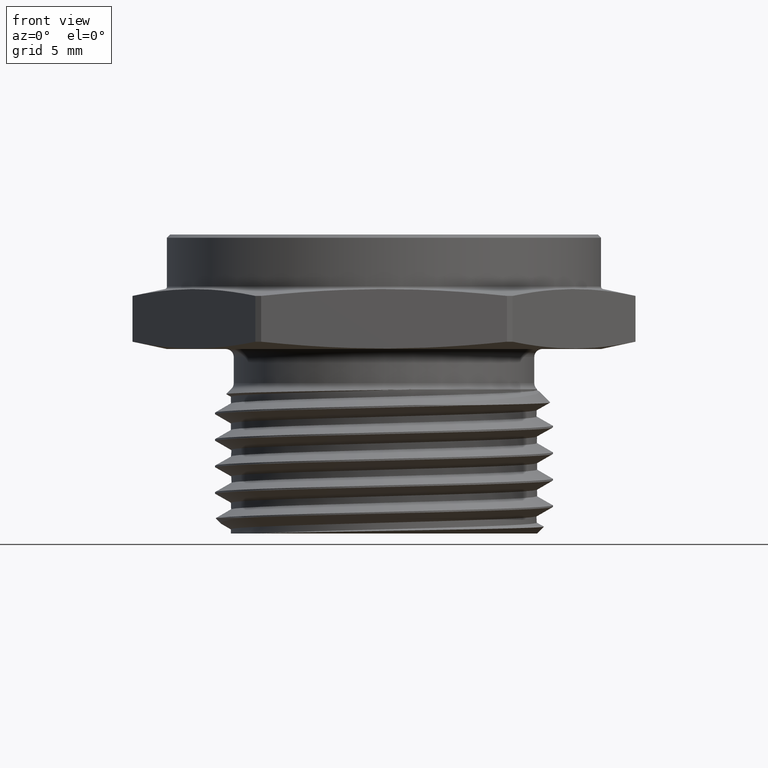
[diagram: clean part render]
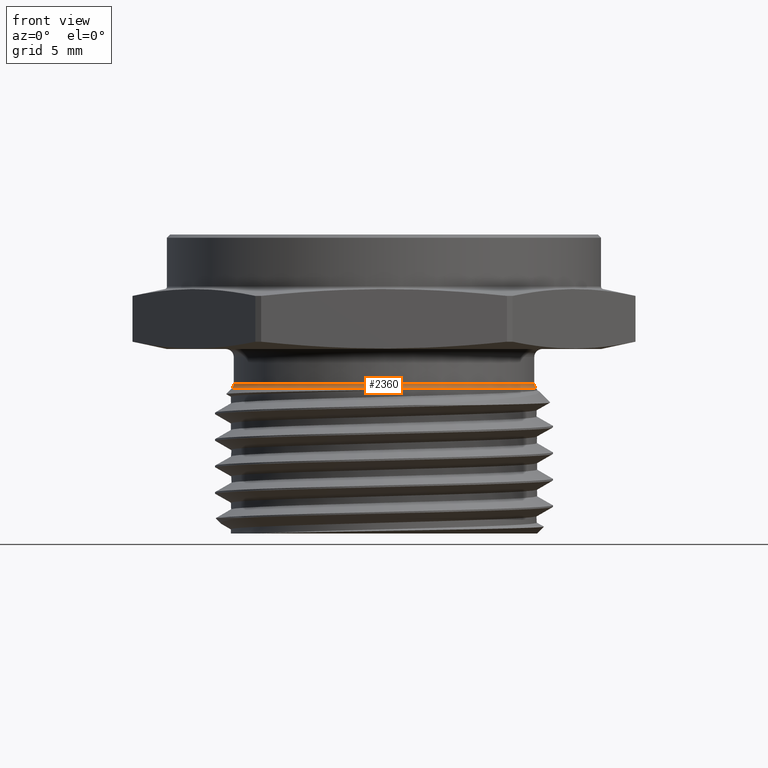
[diagram: same view with one face highlighted and labeled with its STEP entity id]
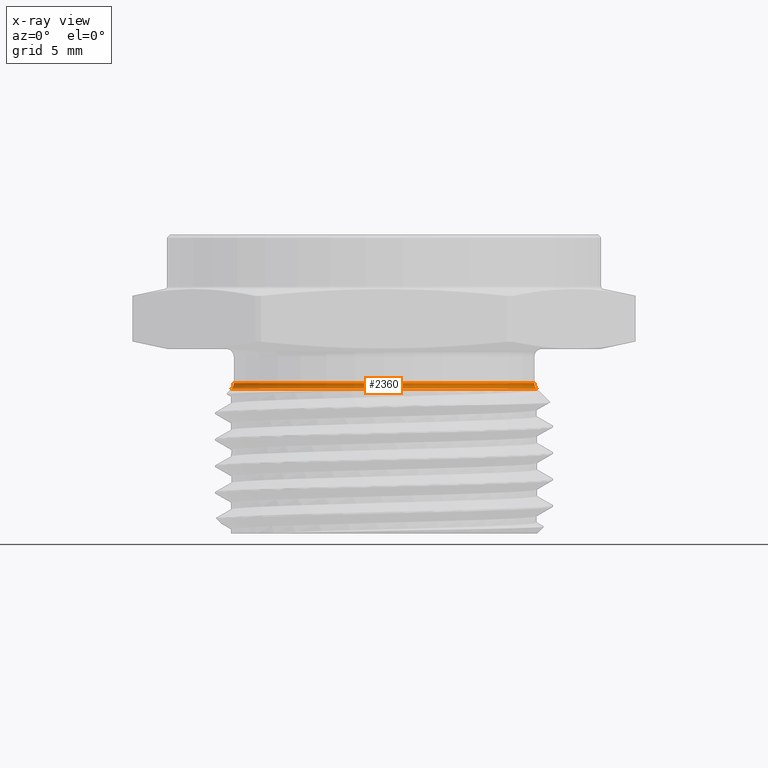
[diagram: x-ray of the same camera — body ghosted, the highlighted face saturated]
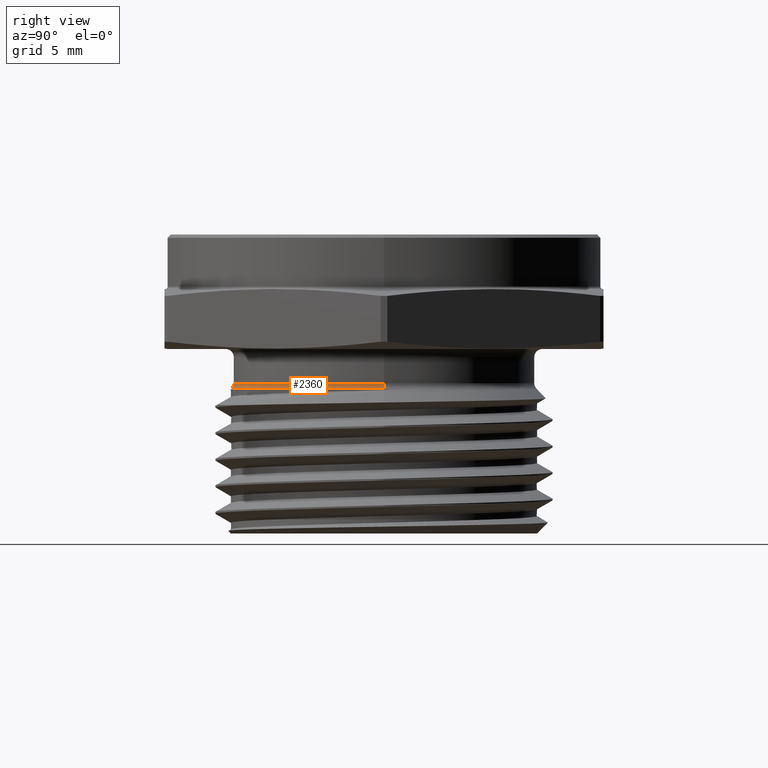
[diagram: same view with one face highlighted and labeled with its STEP entity id]
A machine part, front view. The second image highlights one B-rep face of the part: STEP entity #2360.
The next image is the same camera in x-ray: the body ghosted, the highlighted face saturated — about 0% of this face is hidden behind the body in this view.
A second angle (right view) of the same face is appended — the face is thin or edge-on in the first view.
In plain terms, the highlighted toroidal blend (fillet) surface has major radius 12.6365 mm and minor (blend) radius 0.635 mm.
Its self-contained STEP definition (entity closure, byte-faithful):
#447 = CIRCLE ( 'NONE', #2270, 0.02499999999999999100 ) ;
#458 = CIRCLE ( 'NONE', #2272, 0.02500000000000000500 ) ;
#459 = CIRCLE ( 'NONE', #2271, 0.4798223304703362900 ) ;
#461 = CIRCLE ( 'NONE', #2273, 0.4724999999999999200 ) ;
#518 = FACE_OUTER_BOUND ( 'NONE', #1702, .T. ) ;
#519 = TOROIDAL_SURFACE ( 'NONE', #2300, 0.4974999999999999400, 0.02499999999999999800 ) ;
#1105 = DIRECTION ( 'NONE',  ( -0.0000000000000000000, -0.0000000000000000000, 1.000000000000000000 ) ) ;
#1106 = CARTESIAN_POINT ( 'NONE',  ( 0.0000000000000000000, 0.0000000000000000000, -0.1073223304703362200 ) ) ;
#1108 = DIRECTION ( 'NONE',  ( 1.000000000000000000, 0.0000000000000000000, 0.0000000000000000000 ) ) ;
#1234 = VERTEX_POINT ( 'NONE', #1359 ) ;
#1236 = VERTEX_POINT ( 'NONE', #1366 ) ;
#1252 = VERTEX_POINT ( 'NONE', #1380 ) ;
#1253 = VERTEX_POINT ( 'NONE', #1381 ) ;
#1359 = CARTESIAN_POINT ( 'NONE',  ( 0.4798223304703362900, 6.191032466084761400E-017, -0.1249999999999999300 ) ) ;
#1366 = CARTESIAN_POINT ( 'NONE',  ( -0.4724999999999999200, 5.831292468835226200E-017, -0.1073223304703362200 ) ) ;
#1380 = CARTESIAN_POINT ( 'NONE',  ( 0.4724999999999999200, 0.0000000000000000000, -0.1073223304703362200 ) ) ;
#1381 = CARTESIAN_POINT ( 'NONE',  ( -0.4798223304703362900, 0.0000000000000000000, -0.1249999999999999300 ) ) ;
#1702 = EDGE_LOOP ( 'NONE', ( #2710, #2714, #2718, #2722 ) ) ;
#2112 = CARTESIAN_POINT ( 'NONE',  ( 0.4974999999999999400, 0.0000000000000000000, -0.1073223304703362200 ) ) ;
#2113 = DIRECTION ( 'NONE',  ( 0.0000000000000000000, -1.000000000000000000, 0.0000000000000000000 ) ) ;
#2114 = DIRECTION ( 'NONE',  ( 0.0000000000000000000, 0.0000000000000000000, -1.000000000000000000 ) ) ;
#2115 = CARTESIAN_POINT ( 'NONE',  ( 0.0000000000000000000, 0.0000000000000000000, -0.1249999999999999300 ) ) ;
#2116 = DIRECTION ( 'NONE',  ( -0.0000000000000000000, -0.0000000000000000000, 1.000000000000000000 ) ) ;
#2117 = DIRECTION ( 'NONE',  ( 1.000000000000000000, 0.0000000000000000000, 0.0000000000000000000 ) ) ;
#2119 = CARTESIAN_POINT ( 'NONE',  ( -0.4974999999999999400, 6.092617825758081700E-017, -0.1073223304703362200 ) ) ;
#2120 = DIRECTION ( 'NONE',  ( 1.224646799147353200E-016, 1.000000000000000000, 0.0000000000000000000 ) ) ;
#2121 = DIRECTION ( 'NONE',  ( -1.000000000000000000, 1.224646799147351700E-016, 0.0000000000000000000 ) ) ;
#2123 = CARTESIAN_POINT ( 'NONE',  ( 0.0000000000000000000, 0.0000000000000000000, -0.1073223304703362200 ) ) ;
#2124 = DIRECTION ( 'NONE',  ( -0.0000000000000000000, -0.0000000000000000000, 1.000000000000000000 ) ) ;
#2125 = DIRECTION ( 'NONE',  ( 1.000000000000000000, 0.0000000000000000000, 0.0000000000000000000 ) ) ;
#2171 = EDGE_CURVE ( 'NONE', #1252, #1234, #447, .T. ) ;
#2172 = EDGE_CURVE ( 'NONE', #1253, #1234, #459, .T. ) ;
#2173 = EDGE_CURVE ( 'NONE', #1236, #1253, #458, .T. ) ;
#2174 = EDGE_CURVE ( 'NONE', #1236, #1252, #461, .T. ) ;
#2270 = AXIS2_PLACEMENT_3D ( 'NONE', #2112, #2113, #2114 ) ;
#2271 = AXIS2_PLACEMENT_3D ( 'NONE', #2115, #2116, #2117 ) ;
#2272 = AXIS2_PLACEMENT_3D ( 'NONE', #2119, #2120, #2121 ) ;
#2273 = AXIS2_PLACEMENT_3D ( 'NONE', #2123, #2124, #2125 ) ;
#2300 = AXIS2_PLACEMENT_3D ( 'NONE', #1106, #1105, #1108 ) ;
#2360 = ADVANCED_FACE ( 'NONE', ( #518 ), #519, .F. ) ;
#2710 = ORIENTED_EDGE ( 'NONE', *, *, #2174, .F. ) ;
#2714 = ORIENTED_EDGE ( 'NONE', *, *, #2173, .T. ) ;
#2718 = ORIENTED_EDGE ( 'NONE', *, *, #2172, .T. ) ;
#2722 = ORIENTED_EDGE ( 'NONE', *, *, #2171, .F. ) ;